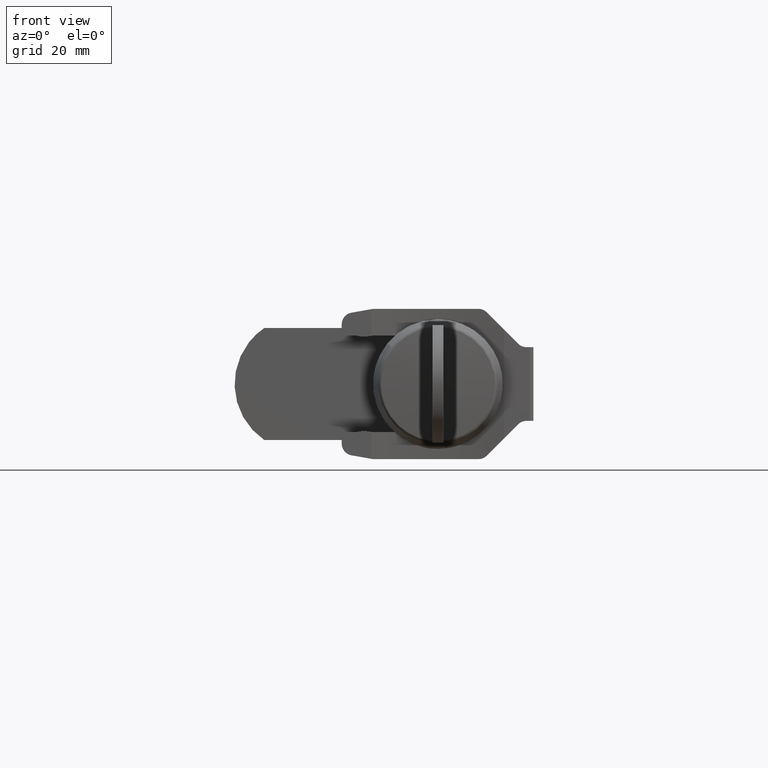
[diagram: clean part render]
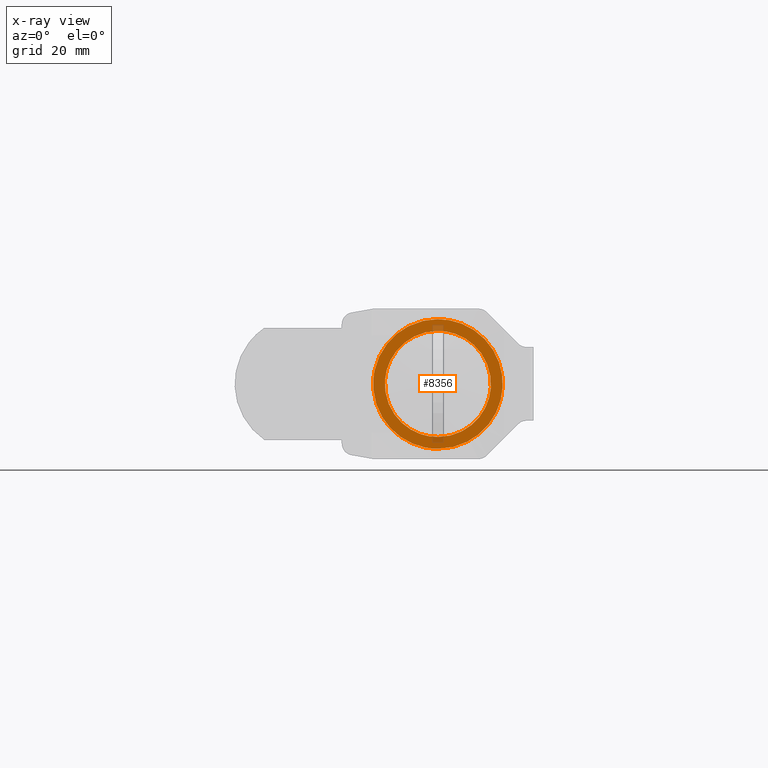
[diagram: x-ray — body ghosted, one internal face saturated and labeled with its STEP entity id]
A machine part, front view, then the same camera in x-ray: the body is ghosted and one INTERNAL B-rep face — a face not visible from any outside direction — is saturated and labeled: STEP entity #8356.
In plain terms, the highlighted face is a freeform B-spline surface patch.
Its self-contained STEP definition (entity closure, byte-faithful):
#7252=CARTESIAN_POINT('',(3.601256000000055,-8.972256003591486,-0.706131861635262));
#7253=VERTEX_POINT('',#7252);
#7259=CARTESIAN_POINT('',(3.601256000000055,0.0,-9.0));
#7260=VERTEX_POINT('',#7259);
#7261=CARTESIAN_POINT('',(3.601256000000055,0.0,-9.0));
#7262=CARTESIAN_POINT('',(3.601256000000056,-8.319514424766386,-9.000000000000002));
#7263=CARTESIAN_POINT('',(3.601256000000056,-8.972256003591486,-0.706131861635262));
#7271=(BOUNDED_CURVE()B_SPLINE_CURVE(2,(#7261,#7262,#7263),.UNSPECIFIED.,.F.,.U.)B_SPLINE_CURVE_WITH_KNOTS((3,3),(0.0,0.236331300629532),.UNSPECIFIED.)CURVE()GEOMETRIC_REPRESENTATION_ITEM()RATIONAL_B_SPLINE_CURVE((1.0,0.723120658608987,0.969723356165065))REPRESENTATION_ITEM(''));
#7272=EDGE_CURVE('',#7260,#7253,#7271,.T.);
#7274=CARTESIAN_POINT('',(3.601256000000055,8.972256003591486,0.706131861635263));
#7275=VERTEX_POINT('',#7274);
#7276=CARTESIAN_POINT('',(3.601256000000055,8.972256003591486,0.706131861635263));
#7277=CARTESIAN_POINT('',(3.601256000000055,8.999999999999998,0.353610963154076));
#7278=CARTESIAN_POINT('',(3.601256000000055,9.0,0.0));
#7279=CARTESIAN_POINT('',(3.601256000000055,9.0,-9.0));
#7280=CARTESIAN_POINT('',(3.601256000000055,0.0,-9.0));
#7288=(BOUNDED_CURVE()B_SPLINE_CURVE(2,(#7276,#7277,#7278,#7279,#7280),.UNSPECIFIED.,.F.,.U.)B_SPLINE_CURVE_WITH_KNOTS((3,2,3),(0.736331300629532,0.750000000000000,1.0),.UNSPECIFIED.)CURVE()GEOMETRIC_REPRESENTATION_ITEM()RATIONAL_B_SPLINE_CURVE((0.969723356165065,0.983986122577561,1.0,0.707106781186547,1.0))REPRESENTATION_ITEM(''));
#7289=EDGE_CURVE('',#7275,#7260,#7288,.T.);
#7365=CARTESIAN_POINT('',(3.601256000000055,0.0,9.0));
#7366=VERTEX_POINT('',#7365);
#7367=CARTESIAN_POINT('',(3.601256000000055,0.0,9.0));
#7368=CARTESIAN_POINT('',(3.601256000000056,8.319514424766330,9.0));
#7369=CARTESIAN_POINT('',(3.601256000000056,8.972256003591486,0.706131861635263));
#7377=(BOUNDED_CURVE()B_SPLINE_CURVE(2,(#7367,#7368,#7369),.UNSPECIFIED.,.F.,.U.)B_SPLINE_CURVE_WITH_KNOTS((3,3),(0.500000000000000,0.736331300629531),.UNSPECIFIED.)CURVE()GEOMETRIC_REPRESENTATION_ITEM()RATIONAL_B_SPLINE_CURVE((1.0,0.723120658608988,0.969723356165062))REPRESENTATION_ITEM(''));
#7378=EDGE_CURVE('',#7366,#7275,#7377,.T.);
#7380=CARTESIAN_POINT('',(3.601256000000056,-8.972256003591486,-0.706131861635262));
#7381=CARTESIAN_POINT('',(3.601256000000055,-9.0,-0.353610963154075));
#7382=CARTESIAN_POINT('',(3.601256000000055,-9.0,0.0));
#7383=CARTESIAN_POINT('',(3.601256000000055,-9.0,9.0));
#7384=CARTESIAN_POINT('',(3.601256000000055,0.0,9.0));
#7392=(BOUNDED_CURVE()B_SPLINE_CURVE(2,(#7380,#7381,#7382,#7383,#7384),.UNSPECIFIED.,.F.,.U.)B_SPLINE_CURVE_WITH_KNOTS((3,2,3),(0.236331300629532,0.250000000000000,0.500000000000000),.UNSPECIFIED.)CURVE()GEOMETRIC_REPRESENTATION_ITEM()RATIONAL_B_SPLINE_CURVE((0.969723356165065,0.983986122577561,1.0,0.707106781186547,1.0))REPRESENTATION_ITEM(''));
#7393=EDGE_CURVE('',#7253,#7366,#7392,.T.);
#7742=CARTESIAN_POINT('',(3.601256000021508,10.966090671061981,-0.863050053125484));
#7743=VERTEX_POINT('',#7742);
#7749=CARTESIAN_POINT('',(3.601256000000000,0.0,-11.0));
#7750=VERTEX_POINT('',#7749);
#7751=CARTESIAN_POINT('',(3.601256000021508,10.966090671061982,-0.863050053125484));
#7752=CARTESIAN_POINT('',(3.601256000000000,10.168295408019569,-11.0));
#7753=CARTESIAN_POINT('',(3.601256000000000,0.0,-11.0));
#7761=(BOUNDED_CURVE()B_SPLINE_CURVE(2,(#7751,#7752,#7753),.UNSPECIFIED.,.F.,.U.)B_SPLINE_CURVE_WITH_KNOTS((3,3),(0.263668699370943,0.500000000000000),.UNSPECIFIED.)CURVE()GEOMETRIC_REPRESENTATION_ITEM()RATIONAL_B_SPLINE_CURVE((0.969723356164074,0.723120658609543,1.0))REPRESENTATION_ITEM(''));
#7762=EDGE_CURVE('',#7743,#7750,#7761,.T.);
#7764=CARTESIAN_POINT('',(3.601256000000000,0.0,11.0));
#7765=VERTEX_POINT('',#7764);
#7766=CARTESIAN_POINT('',(3.601256000000000,0.0,-11.0));
#7767=CARTESIAN_POINT('',(3.601256000000001,-11.0,-11.0));
#7768=CARTESIAN_POINT('',(3.601256000000000,-11.0,0.0));
#7769=CARTESIAN_POINT('',(3.601256000000001,-11.0,11.0));
#7770=CARTESIAN_POINT('',(3.601256000000000,0.0,11.0));
#7778=(BOUNDED_CURVE()B_SPLINE_CURVE(2,(#7766,#7767,#7768,#7769,#7770),.UNSPECIFIED.,.F.,.U.)B_SPLINE_CURVE_WITH_KNOTS((3,2,3),(0.500000000000000,0.750000000000000,1.0),.UNSPECIFIED.)CURVE()GEOMETRIC_REPRESENTATION_ITEM()RATIONAL_B_SPLINE_CURVE((1.0,0.707106781186548,1.0,0.707106781186548,1.0))REPRESENTATION_ITEM(''));
#7779=EDGE_CURVE('',#7750,#7765,#7778,.T.);
#7781=CARTESIAN_POINT('',(3.601256000000417,8.596538511317318,6.862909413903198));
#7782=VERTEX_POINT('',#7781);
#7783=CARTESIAN_POINT('',(3.601256000000000,0.0,11.0));
#7784=CARTESIAN_POINT('',(3.601256000000000,5.293758224560762,11.0));
#7785=CARTESIAN_POINT('',(3.601256000000417,8.596538511317318,6.862909413903198));
#7793=(BOUNDED_CURVE()B_SPLINE_CURVE(2,(#7783,#7784,#7785),.UNSPECIFIED.,.F.,.U.)B_SPLINE_CURVE_WITH_KNOTS((3,3),(0.0,0.141867819260222),.UNSPECIFIED.)CURVE()GEOMETRIC_REPRESENTATION_ITEM()RATIONAL_B_SPLINE_CURVE((1.0,0.833791511083313,0.856220109087804))REPRESENTATION_ITEM(''));
#7794=EDGE_CURVE('',#7765,#7782,#7793,.T.);
#7834=CARTESIAN_POINT('',(3.601256000000417,8.596538511317318,6.862909413903198));
#7835=CARTESIAN_POINT('',(3.601256000000000,11.0,3.852313178135653));
#7836=CARTESIAN_POINT('',(3.601256000000000,11.0,0.0));
#7837=CARTESIAN_POINT('',(3.601256000000001,11.000000000000007,-0.432191177203563));
#7838=CARTESIAN_POINT('',(3.601256000021508,10.966090671061982,-0.863050053125484));
#7846=(BOUNDED_CURVE()B_SPLINE_CURVE(2,(#7834,#7835,#7836,#7837,#7838),.UNSPECIFIED.,.F.,.U.)B_SPLINE_CURVE_WITH_KNOTS((3,2,3),(0.141867819260222,0.250000000000000,0.263668699370943),.UNSPECIFIED.)CURVE()GEOMETRIC_REPRESENTATION_ITEM()RATIONAL_B_SPLINE_CURVE((0.856220109087804,0.873315270103234,1.0,0.983986122577005,0.969723356164074))REPRESENTATION_ITEM(''));
#7847=EDGE_CURVE('',#7782,#7743,#7846,.T.);
#8339=CARTESIAN_POINT('',(3.601256000000000,-12.098896891980910,-12.098899957359730));
#8340=CARTESIAN_POINT('',(3.601256000000000,-12.098896891980910,12.098900547445711));
#8341=CARTESIAN_POINT('',(3.601256000000000,12.098836113124630,-12.098899957359730));
#8342=CARTESIAN_POINT('',(3.601256000000000,12.098836113124630,12.098900547445711));
#8343=B_SPLINE_SURFACE_WITH_KNOTS('',1,1,((#8339,#8341),(#8340,#8342)),.UNSPECIFIED.,.F.,.F.,.U.,(2,2),(2,2),(0.0,24.197800504805439),(0.0,24.197733005105530),.UNSPECIFIED.);
#8344=ORIENTED_EDGE('',*,*,#7779,.F.);
#8345=ORIENTED_EDGE('',*,*,#7762,.F.);
#8346=ORIENTED_EDGE('',*,*,#7847,.F.);
#8347=ORIENTED_EDGE('',*,*,#7794,.F.);
#8348=EDGE_LOOP('',(#8344,#8345,#8346,#8347));
#8349=FACE_OUTER_BOUND('',#8348,.T.);
#8350=ORIENTED_EDGE('',*,*,#7378,.T.);
#8351=ORIENTED_EDGE('',*,*,#7289,.T.);
#8352=ORIENTED_EDGE('',*,*,#7272,.T.);
#8353=ORIENTED_EDGE('',*,*,#7393,.T.);
#8354=EDGE_LOOP('',(#8350,#8351,#8352,#8353));
#8355=FACE_BOUND('',#8354,.T.);
#8356=ADVANCED_FACE('',(#8349,#8355),#8343,.F.);